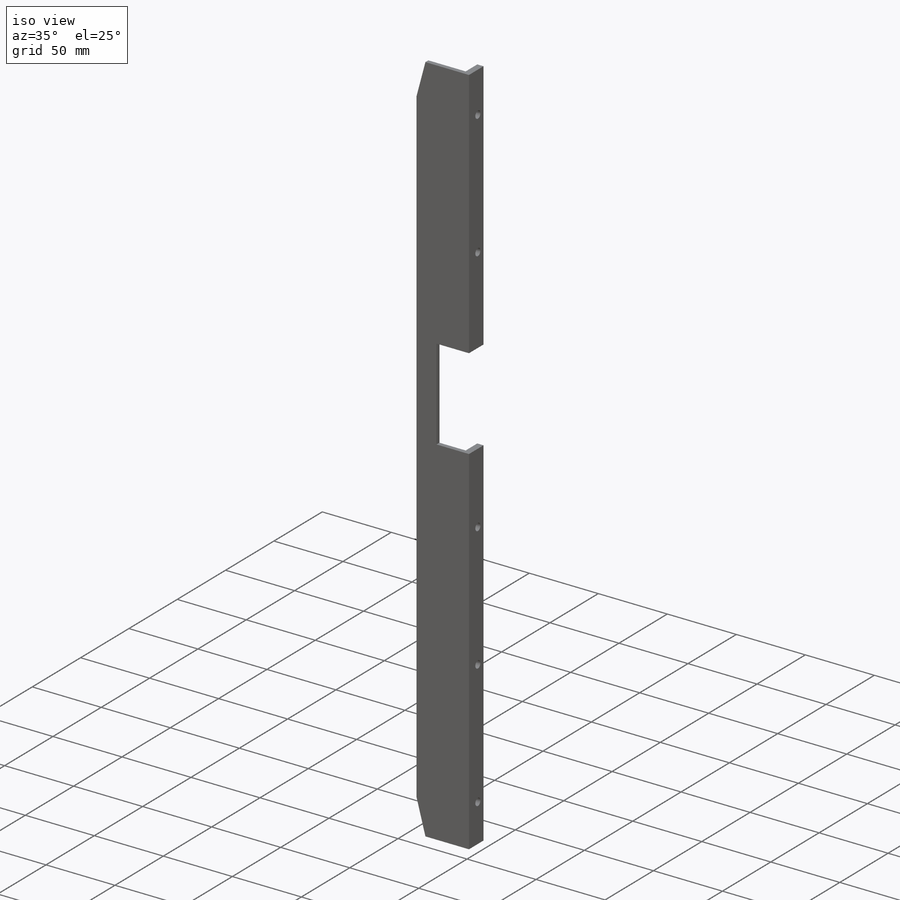
[diagram: iso view]
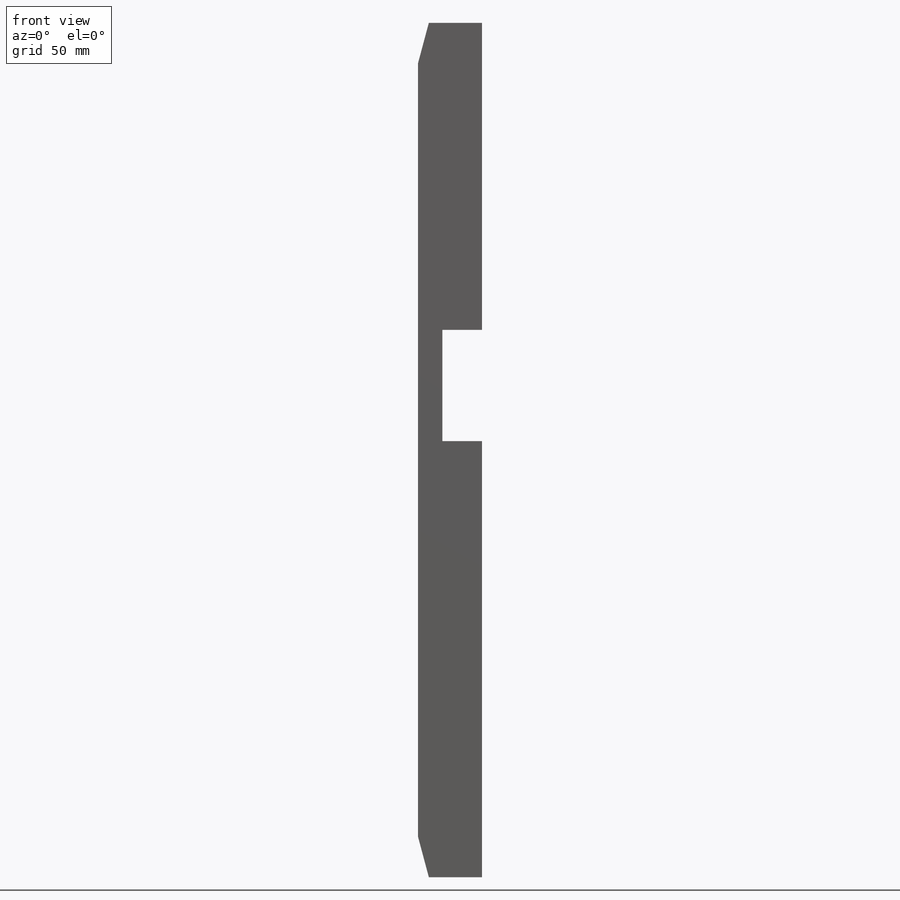
[diagram: front view]
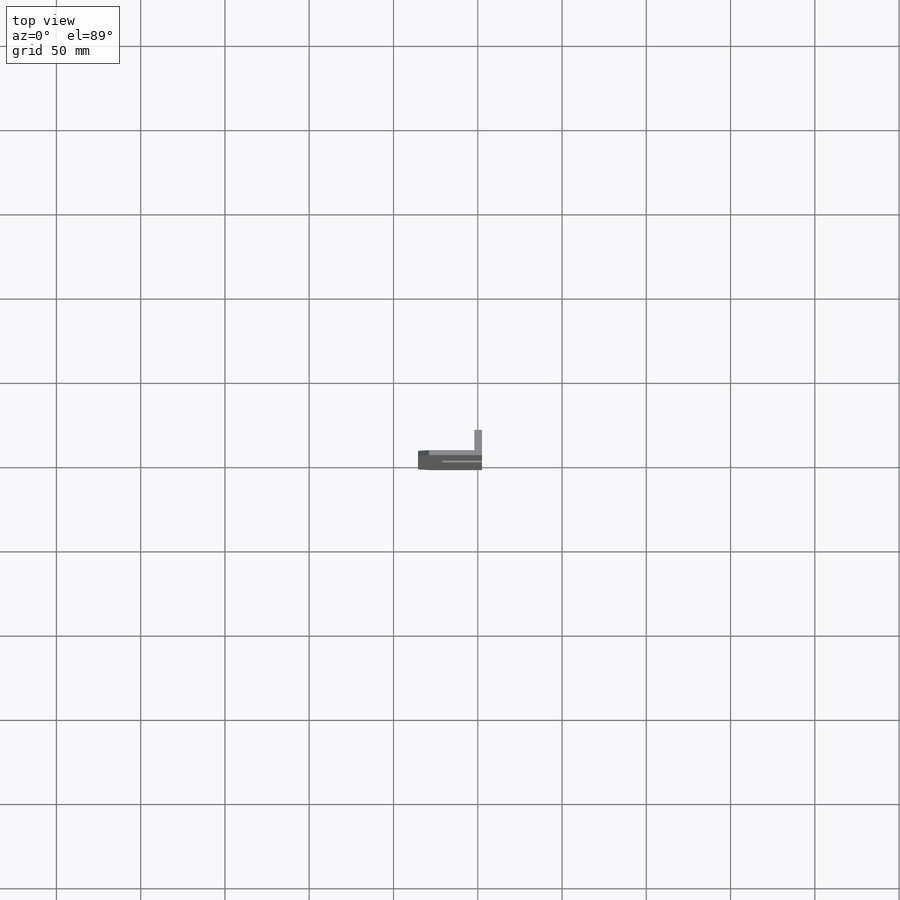
[diagram: top view]
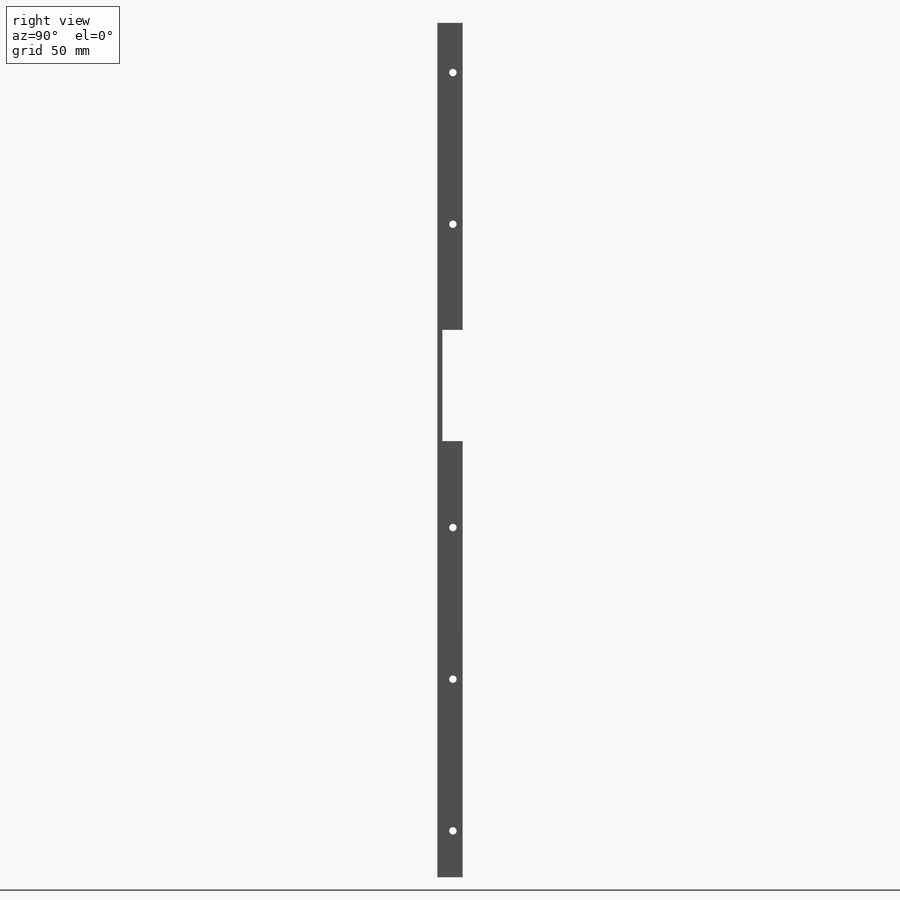
[diagram: right view]
SOLIDWORKS PART (.sldprt)
format: sldprt  version: not decoded by parser v0  size: 1,685,504 bytes
history: native  units: mm
features: sketch x19, cut_extrude x11, extrude x2, plane x2, hole x2, thread x2, material x1, pattern_linear x1, fillet x1, mirror x1 + 1 further entry (+10 scaffold rows collapsed)
feature tree (53):
  scaffold x10  (default folders/planes/origin — collapsed)
  material  "1060 Alloy"
  "Origin"  ID=91907860
  sketch  "MASS SEPARATION"  dims[c1.D2=170.0mm c1.D1=602.0mm c1.D3=95.0mm c1.D4=11.4mm c1.D5=5.0mm c1.D6=11.4mm c1.D7=5.0mm c1.D8=147.8mm c1.D9=162.0mm c1.D10=53.8mm c1.D11=25.0mm c1.D12=234.7mm c1.D13=~326.458267mm c1.D14=624.8mm c2.D4=12.5mm c2.D6=301.0mm c2.D11=301.0mm c2.D14=~8.229133mm c2.D15=~8.229133mm]
  sketch  "Sketch2"  dims[c1.D1=175.0mm c1.D2=1.0mm c1.D3=140.0mm c1.D4=120.0mm c1.D5=100.0mm c1.D6=~334.712064mm c2.D6=90.0deg c3.D6=100.0mm c3.D3=46.8mm c3.D4=5.0mm c4.D6=~60.446602mm c4.D2=5.0mm c4.D1=47.5mm c4.D3=45.0mm c4.D5=47.5mm c5.D6=47.5mm c5.D7=~376.205025mm c6.D7=15.0deg c6.D8=47.5mm c6.D9=~71.617552mm c7.D9=15.0deg c7.D10=697.0mm]
  extrude  "Extrude1"  Depth=101.6mm
  sketch  "Sketch3"  dims[D1=1.5mm D2=1.5mm D3=1.5mm D4=60.0mm]
  cut_extrude  "Cut-Extrude1"  [1 undecoded]
  plane  "Plane1"  Offset=301mm
  sketch  "Sketch5"  dims[D1=15.0mm D2=38.0mm D3=1.5875mm D4=3.0mm D5=4.5mm D6=5.5mm]
  extrude  "Extrude2"  Depth=95mm
  sketch  "Sketch11"  dims[c1.D1=10.0mm c1.D2=100.0mm c1.D3=29.0mm c2.D1=290.0mm c2.D4=23.93mm]
  cut_extrude  "Extrude8"  Depth=150mm
  sketch  "Sketch4"  dims[c1.D1=5.0mm c1.D2=7.2mm c1.D3=5.0mm c1.D4=60.0mm c1.D5=66.0mm c2.D4=20.0mm c2.D6=14.5mm]
  cut_extrude  "Cut-Extrude2"  Depth=92mm
  sketch  "Sketch7"  dims[D1=20.0mm D2=50.0mm D3=40.0mm D4=40.0mm D5=235.0mm D6=245.0mm D7=20.0mm]
  cut_extrude  "Extrude4"  Depth=150mm
  sketch  "Sketch8"  dims[D1=4.5mm D2=310.2mm D3=23.0mm D4=287.2mm D5=46.0mm D6=13.175mm D7=25.8mm]
  cut_extrude  "Extrude5"  [1 undecoded]
  sketch  "Sketch9"  dims[D2=4.5mm D1=35.6mm D3=33.0mm D4=33.0mm D5=365.0mm D6=21.8mm]
  cut_extrude  "Extrude6"  [1 undecoded]
  sketch  "Sketch6"  dims[c1.D1=4.5mm c1.D2=8.22mm c1.D3=33.0mm c1.D4=7.0mm c1.D5=8.0mm c1.D6=125.0mm c1.D7=30.0mm c2.D3=5.0mm]
  hole  "Tapped Hole for #8-32 Helicoil1"  Diameter=4.3942mm Depth=45mm
  sketch  "3DSketch2"
  sketch  "Sketch34"  dims[hole-wizard template sketch: 42 standard entries collapsed; hole parameters kept: c12.Thru Tap Drill Depth=45.0mm c12.Thread Major Dia.=~5.27558mm c12.Thread Depth=5.0mm]
  pattern_linear  "LPattern1"  Count1=6 Count2=1 Spacing1=90mm Spacing2=12.3mm
  sketch  "Sketch10"  dims[c1.D4=4.5mm c1.D11=4.0mm c1.D1=248.5mm c1.D2=30.0mm c1.D3=22.225mm c1.D5=15.0mm c1.D6=7.5mm c1.D7=7.5mm c1.D8=11.175mm c2.D1=157.5mm c2.D9=15.0mm c2.D10=180.0mm c2.D11=~92.06166mm c2.D12=~26.93834mm c3.D9=225.0mm c3.D10=19.05mm c4.D9=210.0mm c4.D10=82.5mm c4.D11=274.0mm c4.D12=259.0mm]
  cut_extrude  "Extrude7"  [1 undecoded]
  sketch  "Sketch12"
  cut_extrude  "Extrude9"  Depth=600mm
  sketch  "Sketch13"  dims[D1=60.0mm]
  cut_extrude  "Extrude10"  Depth=700mm
  sketch  "Sketch20"  dims[D1=15.0mm]
  cut_extrude  "Extrude17"  Depth=10mm
  fillet  "Fillet1"  Radius=2.5mm
  mirror  "Mirror2"
  hole  "#8-32 Tapped Hole1"  Diameter=3.4544mm Depth=45mm
  sketch  "Sketch24"  dims[D1=10.0mm D2=40.0mm]
  sketch  "Sketch25"  dims[hole-wizard template sketch: 60 standard entries collapsed; hole parameters kept: c18.Thru Tap Drill Depth=45.0mm]
  thread  "Hole Thread1"  Diameter=3.25mm  [1 undecoded]
  thread  "Hole Thread2"  Diameter=3.25mm  [1 undecoded]
  plane  "Plane2"  Offset=0mm
  sketch  "Sketch31"  dims[D5=4.5mm D1=14.0mm D2=17.5mm D3=15.0mm D4=0.0mm]
  cut_extrude  "Cut-Extrude3"  Depth=22.5mm
decode coverage: 32 of 39 modeling features carry decoded parameters; 1 rows unclassified (native names shown)
note: ~ marks probable driven/reference dimensions
note: 6 parameter values undecoded
summary: no parameter record found for 4 features
note: suppression state not decoded; provenance and decode notes live in map.json
